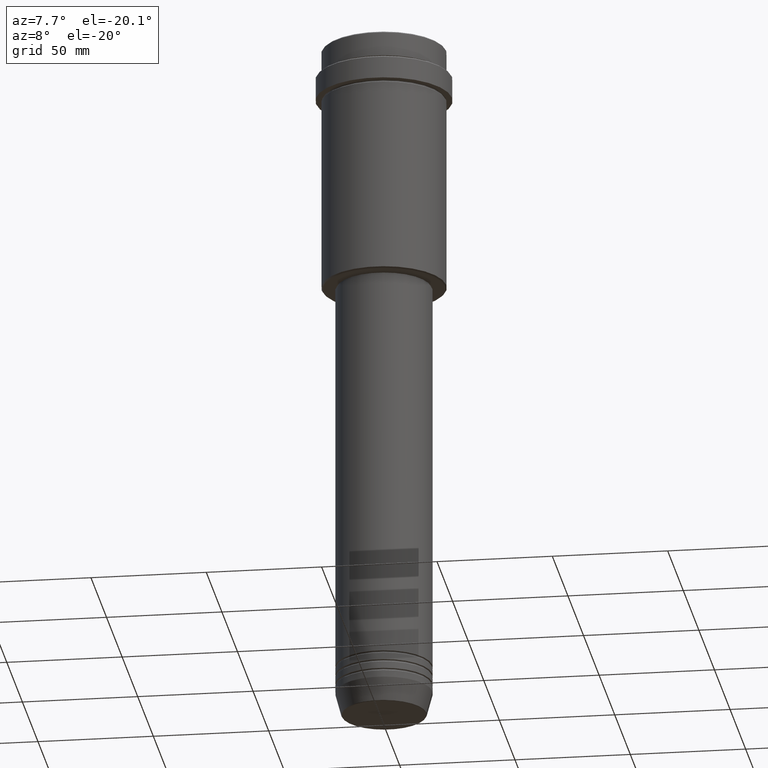
[diagram: clean part render]
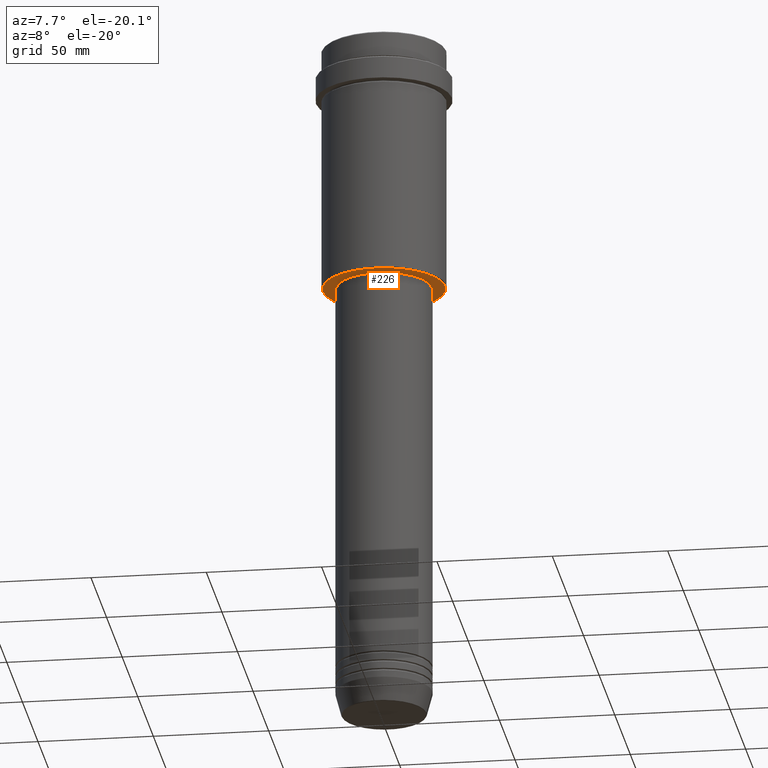
[diagram: same view with one face highlighted and labeled with its STEP entity id]
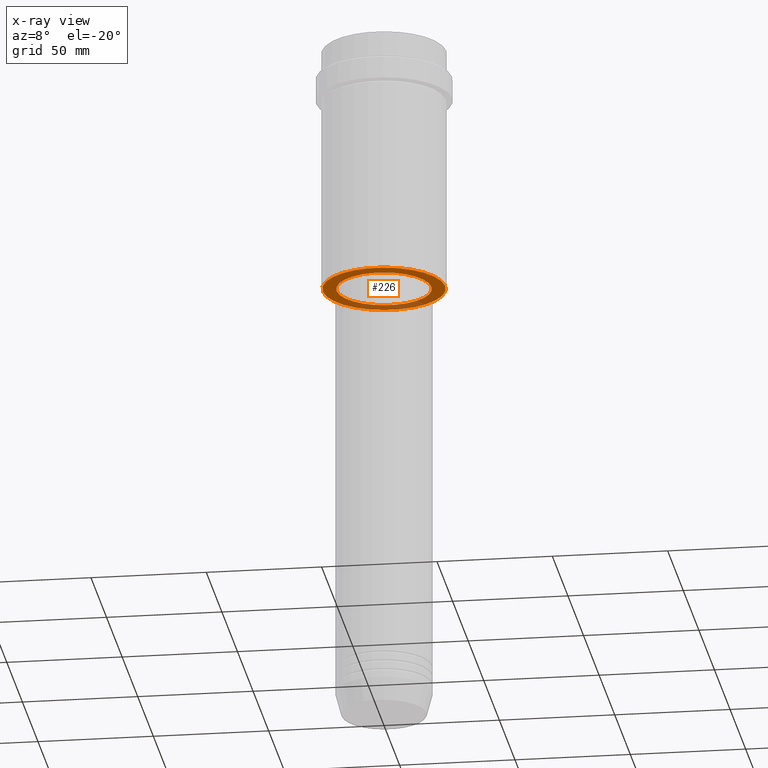
[diagram: x-ray of the same camera — body ghosted, the highlighted face saturated]
A machine part, auxiliary view. The second image highlights one B-rep face of the part: STEP entity #226.
The next image is the same camera in x-ray: the body ghosted, the highlighted face saturated — about 24% of this face is hidden behind the body in this view.
In plain terms, the highlighted planar face has unit normal (0, 0, -1).
Its self-contained STEP definition (entity closure, byte-faithful):
#27 = FACE_OUTER_BOUND ( 'NONE', #198, .T. ) ;
#35 = ORIENTED_EDGE ( 'NONE', *, *, #327, .T. ) ;
#58 = DIRECTION ( 'NONE',  ( 0.000000000000000000, 0.000000000000000000, -1.000000000000000000 ) ) ;
#70 = AXIS2_PLACEMENT_3D ( 'NONE', #276, #1026, #391 ) ;
#71 = ORIENTED_EDGE ( 'NONE', *, *, #93, .T. ) ;
#93 = EDGE_CURVE ( 'NONE', #930, #1216, #724, .T. ) ;
#122 = AXIS2_PLACEMENT_3D ( 'NONE', #208, #440, #1284 ) ;
#125 = DIRECTION ( 'NONE',  ( -1.000000000000000000, 0.000000000000000000, 0.000000000000000000 ) ) ;
#138 = DIRECTION ( 'NONE',  ( -0.000000000000000000, -0.000000000000000000, 1.000000000000000000 ) ) ;
#149 = CARTESIAN_POINT ( 'NONE',  ( 26.49999999999996803, 0.000000000000000000, -108.0000000000000000 ) ) ;
#198 = EDGE_LOOP ( 'NONE', ( #301, #1023 ) ) ;
#208 = CARTESIAN_POINT ( 'NONE',  ( 0.000000000000000000, 0.000000000000000000, -107.9999999999999858 ) ) ;
#226 = ADVANCED_FACE ( 'NONE', ( #27, #373 ), #730, .T. ) ;
#228 = DIRECTION ( 'NONE',  ( 0.000000000000000000, 0.000000000000000000, -1.000000000000000000 ) ) ;
#275 = CARTESIAN_POINT ( 'NONE',  ( -26.49999999999996803, 3.275930187719167974E-15, -108.0000000000000000 ) ) ;
#276 = CARTESIAN_POINT ( 'NONE',  ( 0.000000000000000000, 0.000000000000000000, -108.0000000000000000 ) ) ;
#282 = VERTEX_POINT ( 'NONE', #149 ) ;
#301 = ORIENTED_EDGE ( 'NONE', *, *, #623, .T. ) ;
#327 = EDGE_CURVE ( 'NONE', #1216, #930, #449, .T. ) ;
#354 = CARTESIAN_POINT ( 'NONE',  ( 20.49999999999999289, 0.000000000000000000, -107.9999999999999858 ) ) ;
#373 = FACE_BOUND ( 'NONE', #636, .T. ) ;
#379 = AXIS2_PLACEMENT_3D ( 'NONE', #626, #228, #125 ) ;
#391 = DIRECTION ( 'NONE',  ( -1.000000000000000000, 0.000000000000000000, 0.000000000000000000 ) ) ;
#428 = CARTESIAN_POINT ( 'NONE',  ( 0.000000000000000000, 0.000000000000000000, -107.9999999999999858 ) ) ;
#440 = DIRECTION ( 'NONE',  ( -0.000000000000000000, -0.000000000000000000, 1.000000000000000000 ) ) ;
#449 = CIRCLE ( 'NONE', #122, 20.49999999999999289 ) ;
#495 = DIRECTION ( 'NONE',  ( -1.000000000000000000, 0.000000000000000000, -0.000000000000000000 ) ) ;
#533 = CIRCLE ( 'NONE', #379, 26.49999999999996803 ) ;
#569 = DIRECTION ( 'NONE',  ( 1.000000000000000000, 0.000000000000000000, 0.000000000000000000 ) ) ;
#587 = CARTESIAN_POINT ( 'NONE',  ( 0.000000000000000000, 27.00000000000000355, -108.0000000000000000 ) ) ;
#623 = EDGE_CURVE ( 'NONE', #282, #1111, #742, .T. ) ;
#626 = CARTESIAN_POINT ( 'NONE',  ( 0.000000000000000000, 0.000000000000000000, -108.0000000000000000 ) ) ;
#636 = EDGE_LOOP ( 'NONE', ( #71, #35 ) ) ;
#724 = CIRCLE ( 'NONE', #1190, 20.49999999999999289 ) ;
#730 = PLANE ( 'NONE',  #1077 ) ;
#742 = CIRCLE ( 'NONE', #70, 26.49999999999996803 ) ;
#835 = EDGE_CURVE ( 'NONE', #1111, #282, #533, .T. ) ;
#852 = CARTESIAN_POINT ( 'NONE',  ( -20.49999999999999289, 2.510525938252073298E-15, -107.9999999999999858 ) ) ;
#930 = VERTEX_POINT ( 'NONE', #354 ) ;
#1023 = ORIENTED_EDGE ( 'NONE', *, *, #835, .T. ) ;
#1026 = DIRECTION ( 'NONE',  ( 0.000000000000000000, 0.000000000000000000, -1.000000000000000000 ) ) ;
#1077 = AXIS2_PLACEMENT_3D ( 'NONE', #587, #58, #495 ) ;
#1111 = VERTEX_POINT ( 'NONE', #275 ) ;
#1190 = AXIS2_PLACEMENT_3D ( 'NONE', #428, #138, #569 ) ;
#1216 = VERTEX_POINT ( 'NONE', #852 ) ;
#1284 = DIRECTION ( 'NONE',  ( 1.000000000000000000, 0.000000000000000000, 0.000000000000000000 ) ) ;